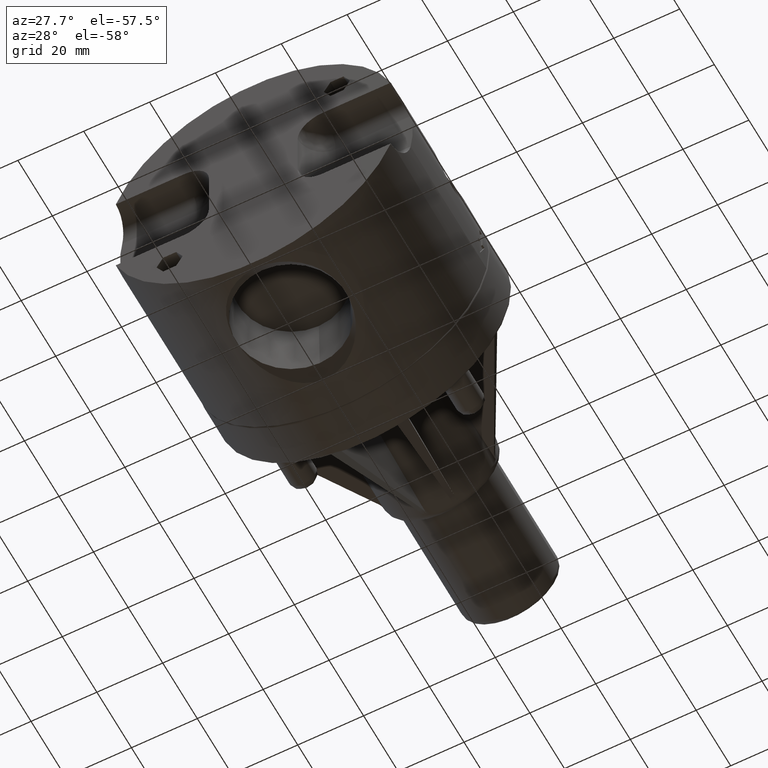
[diagram: clean part render]
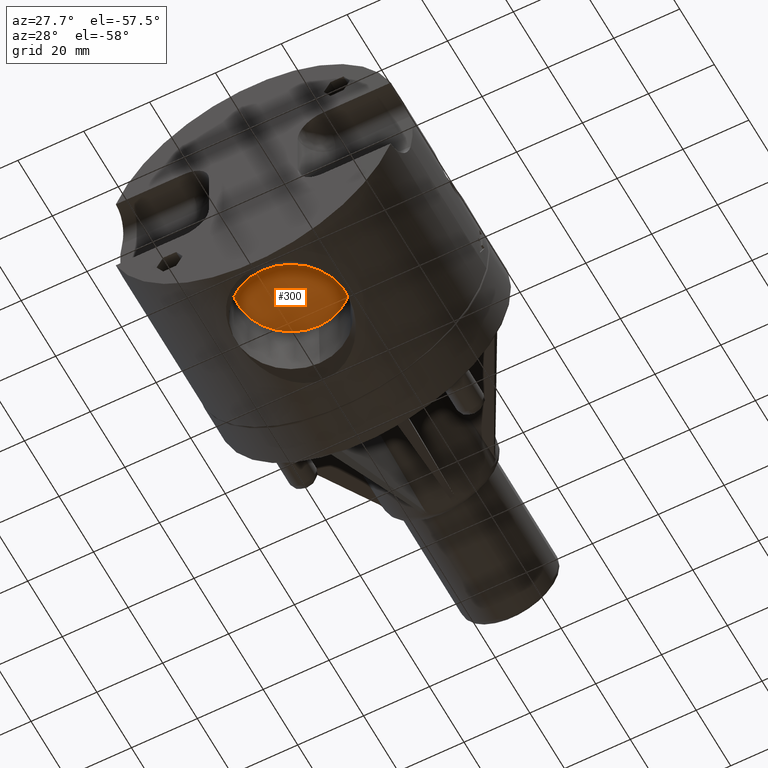
[diagram: same view with one face highlighted and labeled with its STEP entity id]
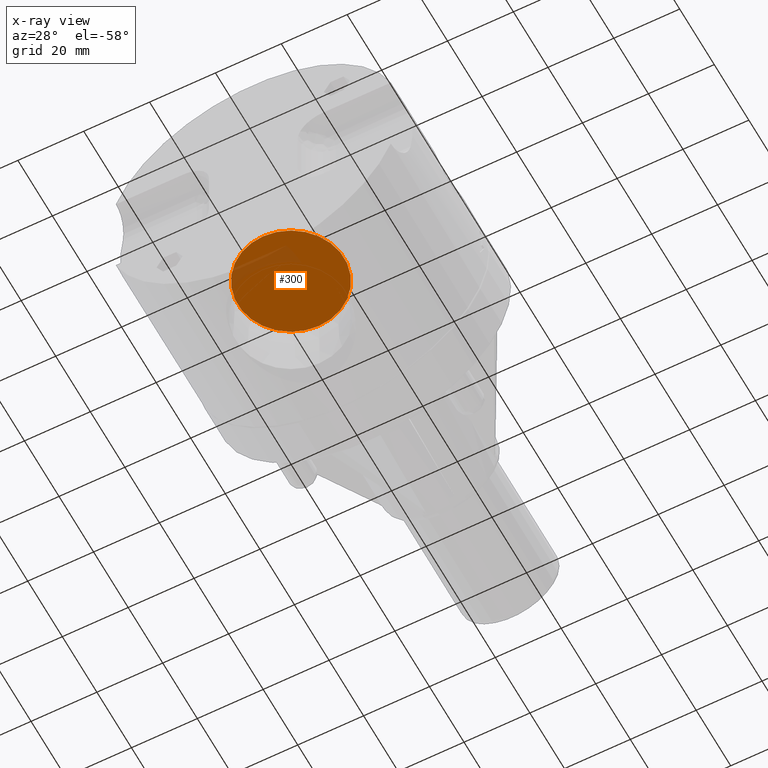
[diagram: x-ray of the same camera — body ghosted, the highlighted face saturated]
A machine part, auxiliary view. The second image highlights one B-rep face of the part: STEP entity #300.
The next image is the same camera in x-ray: the body ghosted, the highlighted face saturated — about 9% of this face is hidden behind the body in this view.
In plain terms, the highlighted planar face has unit normal (0, 0, 1).
Its self-contained STEP definition (entity closure, byte-faithful):
#284=CARTESIAN_POINT('',(0.0,0.858000000000000,-0.920000000000000));
#285=DIRECTION('',(0.0,0.0,1.0));
#286=DIRECTION('',(1.0,0.0,0.0));
#287=AXIS2_PLACEMENT_3D('',#284,#285,#286);
#288=PLANE('',#287);
#289=CARTESIAN_POINT('',(0.0,1.493625129730741,-0.920000000000000));
#290=VERTEX_POINT('',#289);
#291=CARTESIAN_POINT('',(0.0,0.858000000000000,-0.920000000000000));
#292=DIRECTION('',(0.0,0.0,1.0));
#293=DIRECTION('',(0.0,1.0,0.0));
#294=AXIS2_PLACEMENT_3D('',#291,#292,#293);
#295=CIRCLE('',#294,0.635625129730741);
#296=EDGE_CURVE('',#290,#290,#295,.T.);
#297=ORIENTED_EDGE('',*,*,#296,.F.);
#298=EDGE_LOOP('',(#297));
#299=FACE_OUTER_BOUND('',#298,.T.);
#300=ADVANCED_FACE('',(#299),#288,.F.);